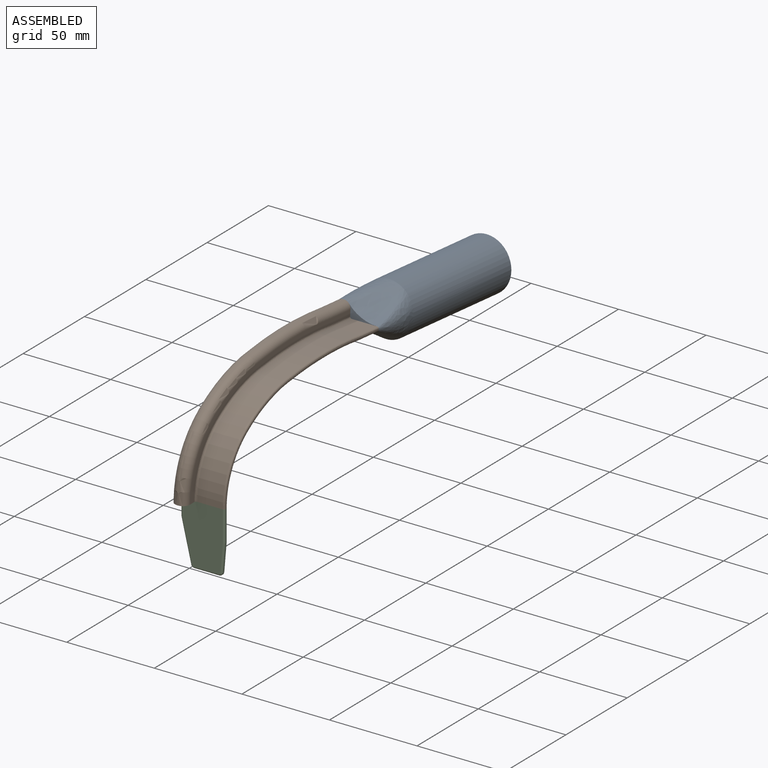
[diagram: assembled view]
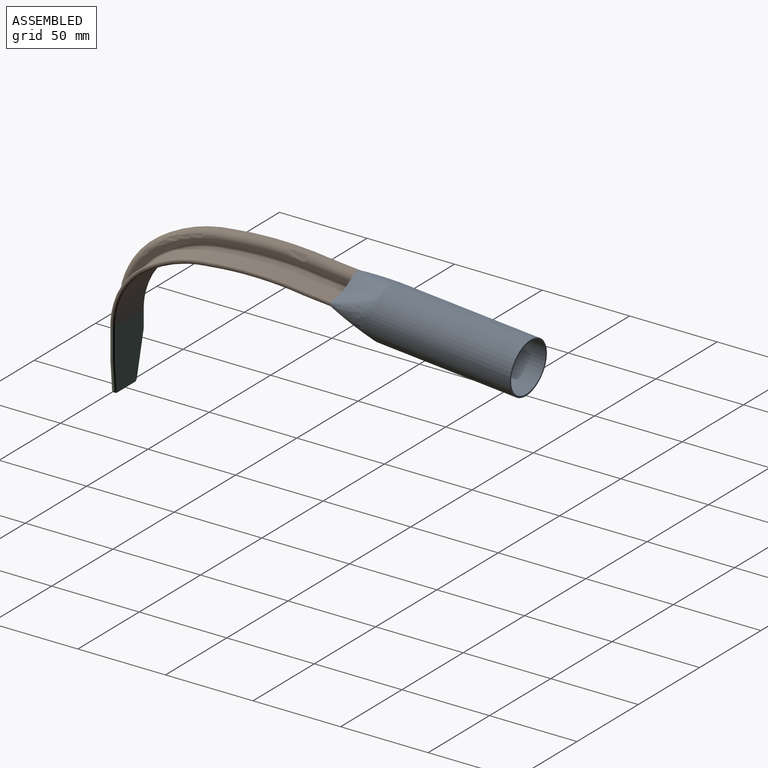
[diagram: assembled view, second angle]
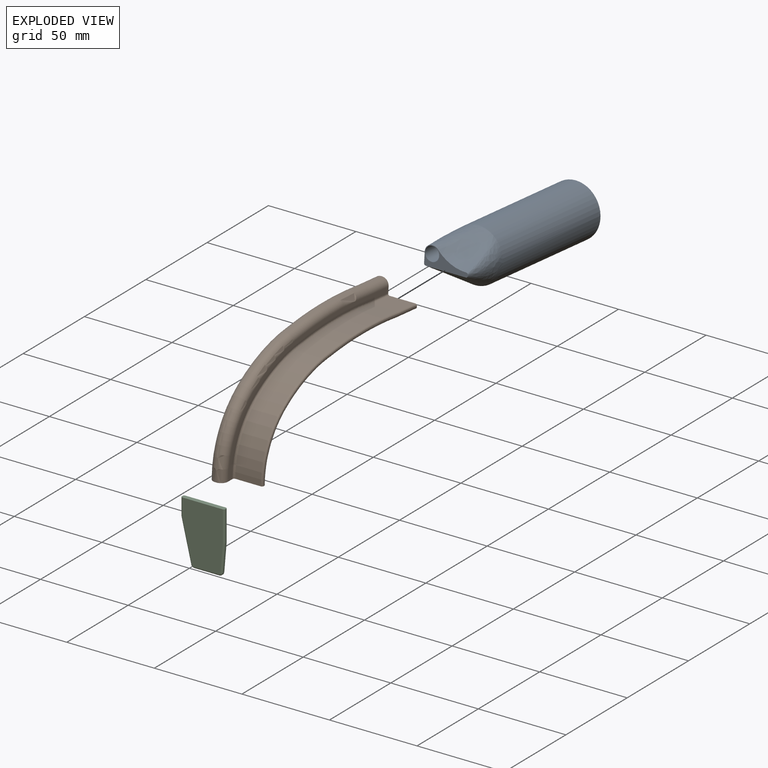
[diagram: exploded view]
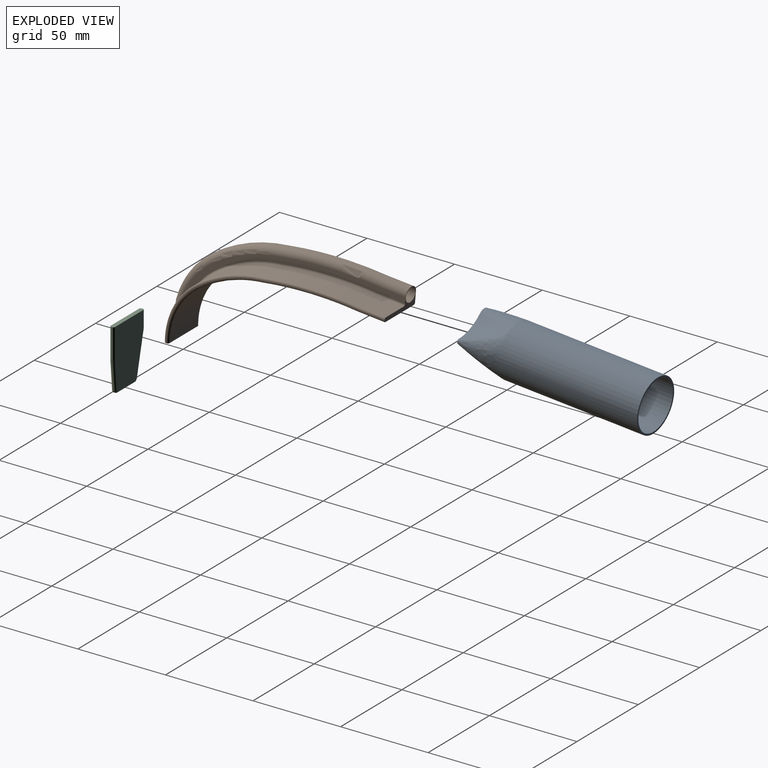
[diagram: exploded view, second angle]
ASSEMBLY  parts=3 mates=2
PART A: 7 faces, bbox 30.3x105.1x30.1 mm
  f0: plane 25.09x11.09mm, normal (0,1,0), area 107.1mm2, adj f1,f2
  f1: bspline ~30.16x29.97mm, area 2108.4mm2, adj f0,f4
  f2: cylinder r=4mm len=35mm, axis (0,1,0), area 879.6mm2, adj f0,f6
  f3: cylinder r=14mm len=70mm, axis (0,1,0), area 6157.5mm2, adj f5,f6
  f4: cylinder r=15mm len=80mm, axis (0,1,0), area 7539.8mm2, adj f1,f5
  f5: plane 30x30mm, normal (0,-1,0), area 91.1mm2, adj f3,f4
  f6: plane 28x28mm, normal (0,-1,0), area 565.5mm2, adj f2,f3
PART B: 51 faces, bbox 26.1x135.2x70.6 mm
  f0: plane 125.93x62.9mm, normal (1,0,0), area 546.5mm2, adj f5,f6,f7,f10,f13,f16,f27,f34
  f1: bspline ~43.39x23.11mm, area 1129.1mm2, adj f2,f5
  f2: bspline ~41.89x24.64mm, area 1082.7mm2, adj f1,f3
  f3: bspline ~56.5x12.61mm, area 1402.6mm2, adj f2,f4
  f4: cylinder r=4mm len=14.87mm, axis (0,1,0), area 373.8mm2, adj f3,f6
  f5: plane 26.11x12.07mm, normal (0,-0.09,1), area 77.2mm2, adj f0,f1,f7,f8,f9,f19,f28,f29
  f6: plane 25.03x11.03mm, normal (0,-1,0), area 77.2mm2, adj f0,f4,f16,f17,f18,f19,f43,f44
  f7: torus R=47.04mm, axis (1,0,0), area 299.2mm2, adj f0,f5,f8,f10
  f8: cylinder r=51.04mm len=43.64mm, axis (1,0,0), area 24.5mm2, adj f5,f7,f9,f11
  f9: torus R=47.04mm, axis (1,0,0), area 299.2mm2, adj f5,f8,f12,f19
  f10: torus R=79.66mm, axis (1,0,0), area 279.9mm2, adj f0,f7,f11,f13
  f11: cylinder r=83.66mm len=40.68mm, axis (1,0,0), area 22.6mm2, adj f8,f10,f12,f14
  f12: torus R=79.66mm, axis (1,0,0), area 279.9mm2, adj f9,f11,f15,f19
  f13: torus R=218.77mm, axis (1,0,0), area 354.6mm2, adj f0,f10,f14,f16
  f14: cylinder r=222.77mm len=56.36mm, axis (1,0,0), area 28.4mm2, adj f11,f13,f15,f17
  f15: torus R=218.77mm, axis (1,0,0), area 354.6mm2, adj f12,f14,f18,f19
  f16: cylinder r=4mm len=14.87mm, axis (0,1,0), area 93.1mm2, adj f0,f6,f13,f17
  f17: plane 14.77x0.5mm, normal (0,0,-1), area 7.4mm2, adj f6,f14,f16,f18
  f18: cylinder r=4mm len=14.87mm, axis (0,1,0), area 93.1mm2, adj f6,f15,f17,f19
  f19: plane 126x62.97mm, normal (-1,0,0), area 759.6mm2, adj f5,f6,f9,f12,f15,f18,f20,f28
  f20: bspline ~40.34x20.64mm, area 60.8mm2, adj f19,f21,f42
  f21: bspline ~36.34x17.21mm, area 62.5mm2, adj f20,f22,f28,f41
  f22: bspline ~35.69x23mm, area 910.4mm2, adj f21,f23,f29,f40
  f23: bspline ~36.34x17.21mm, area 62.5mm2, adj f22,f24,f30,f39
  f24: bspline ~36.51x16.95mm, area 20.1mm2, adj f23,f25,f31,f38
  f25: bspline ~37.08x17.55mm, area 63.9mm2, adj f24,f26,f32,f37
  f26: bspline ~36.93x16.79mm, area 593mm2, adj f25,f27,f33,f36
  f27: bspline ~37.58x17.78mm, area 64.5mm2, adj f0,f26,f34,f35
  f28: bspline ~35.09x15.21mm, area 61mm2, adj f5,f19,f21,f29
  f29: bspline ~34.24x23mm, area 884.8mm2, adj f5,f22,f28,f30
  f30: bspline ~35.09x15.21mm, area 61mm2, adj f5,f23,f29,f31
  f31: plane 35.54x15.16mm, normal (1,0,0), area 19.8mm2, adj f5,f24,f30,f32
  f32: bspline ~36.37x16.04mm, area 63.6mm2, adj f5,f25,f31,f33
  f33: bspline ~36.37x15.39mm, area 592.4mm2, adj f5,f26,f32,f34
  f34: bspline ~37.22x16.4mm, area 64.7mm2, adj f0,f5,f27,f33
  f35: bspline ~55.22x5.75mm, area 86.4mm2, adj f0,f27,f36,f43
  f36: bspline ~54.97x14.5mm, area 796.7mm2, adj f26,f35,f37,f44
  f37: bspline ~54.97x5.72mm, area 86.2mm2, adj f25,f36,f38,f45
  f38: bspline ~54.71x5.21mm, area 27.3mm2, adj f24,f37,f39,f46
  f39: bspline ~54.59x5.69mm, area 85.6mm2, adj f23,f38,f40,f47
  f40: bspline ~54.33x23mm, area 1251.9mm2, adj f22,f39,f41,f48
  f41: bspline ~54.59x5.69mm, area 85.6mm2, adj f21,f40,f42,f49
  f42: bspline ~54.97x6.21mm, area 82.2mm2, adj f19,f20,f41,f50
  f43: bspline ~15.14x1mm, area 23.5mm2, adj f0,f6,f35,f44
  f44: bspline ~15.14x14.5mm, area 217.1mm2, adj f6,f36,f43,f45
  f45: bspline ~15.14x1mm, area 23.5mm2, adj f6,f37,f44,f46
  f46: bspline ~15.14x0.5mm, area 7.5mm2, adj f6,f38,f45,f47
  f47: bspline ~15.14x1mm, area 23.6mm2, adj f6,f39,f46,f48
  f48: bspline ~23x15.14mm, area 345.6mm2, adj f6,f40,f47,f49
  f49: bspline ~15.14x1mm, area 23.6mm2, adj f6,f41,f48,f50
  f50: bspline ~15.14x1.57mm, area 22.5mm2, adj f6,f19,f42,f49
PART C: 30 faces, bbox 35.2x2.5x25 mm
  f0: plane 17.44x0.5mm, normal (0,0,1), area 8.7mm2, adj f1,f9,f20,f29
  f1: cylinder r=1.5mm len=0.5mm, axis (0,1,0), area 0.1mm2, adj f0,f2,f19,f28
  f2: plane 15.61x1.34mm, normal (-0.09,0,1), area 7.8mm2, adj f1,f3,f18,f27
  f3: cylinder r=2mm len=1.99mm, axis (0,1,0), area 1.5mm2, adj f2,f4,f17,f26
  f4: plane 14.09x0.5mm, normal (-1,0,0), area 7mm2, adj f3,f5,f16,f25
  f5: cylinder r=2mm len=1.94mm, axis (0,1,0), area 1.3mm2, adj f4,f6,f15,f24
  f6: plane 23.13x5.5mm, normal (-0.23,0,-0.97), area 11.9mm2, adj f5,f7,f14,f23
  f7: cylinder r=5mm len=1.16mm, axis (0,1,0), area 0.6mm2, adj f6,f8,f13,f22
  f8: plane 9.18x0.5mm, normal (0,0,-1), area 4.6mm2, adj f7,f9,f12,f21
  f9: plane 25x2.5mm, normal (1,0,0), area 61.6mm2, adj f0,f8,f10,f11,f12,f20,f21,f29
  f10: plane 34x23mm, normal (0,-1,0), area 699.5mm2, adj f9,f21,f22,f23,f24,f25,f26,f27
  f11: plane 34x23mm, normal (0,1,0), area 699.5mm2, adj f9,f12,f13,f14,f15,f16,f17,f18
  f12: cylinder r=1mm len=9.18mm, axis (1,0,0), area 14.4mm2, adj f8,f9,f11,f13
  f13: torus R=4mm, axis (0,-1,0), area 1.7mm2, adj f7,f11,f12,f14
  f14: cylinder r=1mm len=23.36mm, axis (0.97,0,-0.23), area 37.3mm2, adj f6,f11,f13,f15
  f15: torus R=1mm, axis (0,-1,0), area 3.4mm2, adj f5,f11,f14,f16
  f16: cylinder r=1mm len=14.09mm, axis (0,0,-1), area 22.1mm2, adj f4,f11,f15,f17
  f17: torus R=1mm, axis (0,-1,0), area 3.8mm2, adj f3,f11,f16,f18
  f18: cylinder r=1mm len=15.69mm, axis (-1,0,-0.09), area 24.6mm2, adj f2,f11,f17,f19
  f19: torus R=0.5mm, axis (0,-1,0), area 0.2mm2, adj f1,f11,f18,f20
  f20: cylinder r=1mm len=17.44mm, axis (-1,0,0), area 27.4mm2, adj f0,f9,f11,f19
  f21: cylinder r=1mm len=9.18mm, axis (-1,0,0), area 14.4mm2, adj f8,f9,f10,f22
  f22: torus R=4mm, axis (0,-1,0), area 1.7mm2, adj f7,f10,f21,f23
  f23: cylinder r=1mm len=23.36mm, axis (-0.97,0,0.23), area 37.3mm2, adj f6,f10,f22,f24
  f24: torus R=1mm, axis (0,-1,0), area 3.4mm2, adj f5,f10,f23,f25
  f25: cylinder r=1mm len=14.09mm, axis (0,0,1), area 22.1mm2, adj f4,f10,f24,f26
  f26: torus R=1mm, axis (0,-1,0), area 3.8mm2, adj f3,f10,f25,f27
  f27: cylinder r=1mm len=15.69mm, axis (1,0,0.09), area 24.6mm2, adj f2,f10,f26,f28
  f28: torus R=0.5mm, axis (0,-1,0), area 0.2mm2, adj f1,f10,f27,f29
  f29: cylinder r=1mm len=17.44mm, axis (1,0,0), area 27.4mm2, adj f0,f9,f10,f28
PLACE A rot(axis=(1,0,0),174.8deg) t=(27.68,147.04,21.44)mm
PLACE B rot(axis=(1,0,0),174.8deg) t=(27.68,147.04,21.44)mm
PLACE C rot(axis=(-0.71,0,-0.71),180deg) t=(29.18,21.17,-51.1)mm
MATE fastened B.f6 <-> A.f0  axis (0,1,-0.09) through (27.68,146.93,20.19)mm
MATE fastened B.f5 <-> C.f9  axis (0,0,-1) through (27.68,23.67,-23.63)mm
